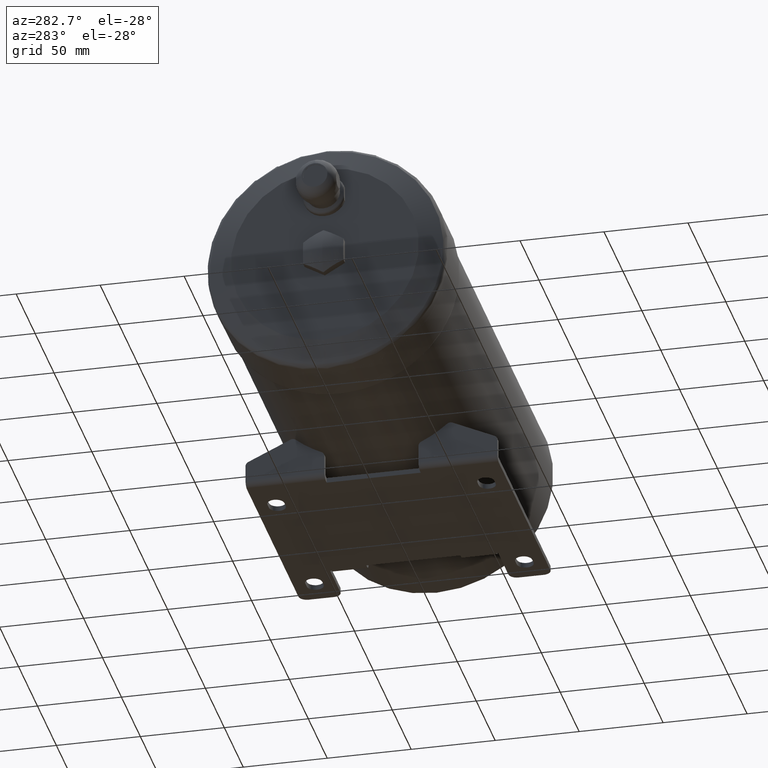
[diagram: clean part render]
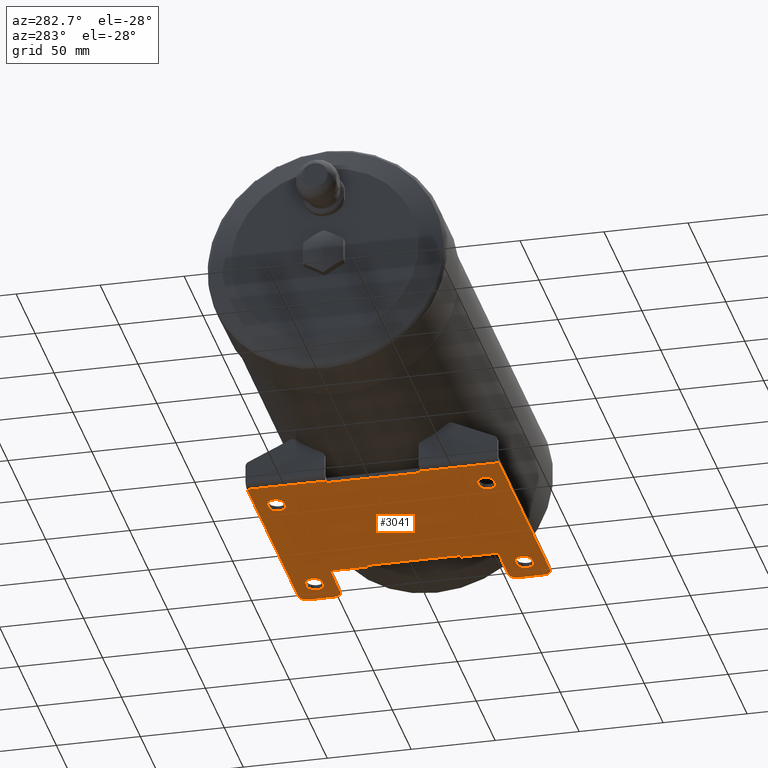
[diagram: same view with one face highlighted and labeled with its STEP entity id]
A machine part, auxiliary view. The second image highlights one B-rep face of the part: STEP entity #3041.
In plain terms, the highlighted planar face has unit normal (-0, 0, 1).
Its self-contained STEP definition (entity closure, byte-faithful):
#67=PLANE('',#3290);
#165=LINE('',#4595,#327);
#166=LINE('',#4599,#328);
#167=LINE('',#4603,#329);
#168=LINE('',#4607,#330);
#169=LINE('',#4608,#331);
#170=LINE('',#4613,#332);
#171=LINE('',#4616,#333);
#172=LINE('',#4621,#334);
#173=LINE('',#4624,#335);
#174=LINE('',#4629,#336);
#175=LINE('',#4633,#337);
#176=LINE('',#4635,#338);
#177=LINE('',#4637,#339);
#178=LINE('',#4639,#340);
#179=LINE('',#4641,#341);
#180=LINE('',#4643,#342);
#181=LINE('',#4645,#343);
#182=LINE('',#4647,#344);
#183=LINE('',#4649,#345);
#184=LINE('',#4653,#346);
#185=LINE('',#4657,#347);
#186=LINE('',#4659,#348);
#187=LINE('',#4661,#349);
#188=LINE('',#4663,#350);
#189=LINE('',#4665,#351);
#190=LINE('',#4667,#352);
#327=VECTOR('',#3801,1000.);
#328=VECTOR('',#3804,1000.);
#329=VECTOR('',#3807,1000.);
#330=VECTOR('',#3810,1000.);
#331=VECTOR('',#3811,1000.);
#332=VECTOR('',#3814,1000.);
#333=VECTOR('',#3817,1000.);
#334=VECTOR('',#3820,1000.);
#335=VECTOR('',#3823,1000.);
#336=VECTOR('',#3826,1000.);
#337=VECTOR('',#3829,1000.);
#338=VECTOR('',#3830,1000.);
#339=VECTOR('',#3831,1000.);
#340=VECTOR('',#3832,1000.);
#341=VECTOR('',#3833,1000.);
#342=VECTOR('',#3834,1000.);
#343=VECTOR('',#3835,1000.);
#344=VECTOR('',#3836,1000.);
#345=VECTOR('',#3837,1000.);
#346=VECTOR('',#3840,1000.);
#347=VECTOR('',#3843,1000.);
#348=VECTOR('',#3844,1000.);
#349=VECTOR('',#3845,1000.);
#350=VECTOR('',#3846,1000.);
#351=VECTOR('',#3847,1000.);
#352=VECTOR('',#3848,1000.);
#695=ORIENTED_EDGE('',*,*,#1213,.T.);
#696=ORIENTED_EDGE('',*,*,#1214,.T.);
#697=ORIENTED_EDGE('',*,*,#1215,.T.);
#698=ORIENTED_EDGE('',*,*,#1216,.T.);
#699=ORIENTED_EDGE('',*,*,#1217,.T.);
#700=ORIENTED_EDGE('',*,*,#1218,.T.);
#701=ORIENTED_EDGE('',*,*,#1219,.T.);
#702=ORIENTED_EDGE('',*,*,#1220,.T.);
#703=ORIENTED_EDGE('',*,*,#1221,.T.);
#704=ORIENTED_EDGE('',*,*,#1222,.T.);
#705=ORIENTED_EDGE('',*,*,#1223,.T.);
#706=ORIENTED_EDGE('',*,*,#1224,.T.);
#707=ORIENTED_EDGE('',*,*,#1225,.T.);
#708=ORIENTED_EDGE('',*,*,#1226,.T.);
#709=ORIENTED_EDGE('',*,*,#1227,.T.);
#710=ORIENTED_EDGE('',*,*,#1228,.T.);
#711=ORIENTED_EDGE('',*,*,#1229,.F.);
#712=ORIENTED_EDGE('',*,*,#1230,.T.);
#713=ORIENTED_EDGE('',*,*,#1231,.T.);
#714=ORIENTED_EDGE('',*,*,#1232,.T.);
#715=ORIENTED_EDGE('',*,*,#1233,.F.);
#716=ORIENTED_EDGE('',*,*,#1234,.F.);
#717=ORIENTED_EDGE('',*,*,#1235,.T.);
#718=ORIENTED_EDGE('',*,*,#1236,.T.);
#719=ORIENTED_EDGE('',*,*,#1237,.T.);
#720=ORIENTED_EDGE('',*,*,#1238,.T.);
#721=ORIENTED_EDGE('',*,*,#1239,.T.);
#722=ORIENTED_EDGE('',*,*,#1240,.F.);
#723=ORIENTED_EDGE('',*,*,#1241,.T.);
#724=ORIENTED_EDGE('',*,*,#1242,.T.);
#725=ORIENTED_EDGE('',*,*,#1243,.T.);
#726=ORIENTED_EDGE('',*,*,#1244,.T.);
#727=ORIENTED_EDGE('',*,*,#1245,.F.);
#728=ORIENTED_EDGE('',*,*,#1246,.T.);
#729=ORIENTED_EDGE('',*,*,#1247,.T.);
#730=ORIENTED_EDGE('',*,*,#1248,.T.);
#731=ORIENTED_EDGE('',*,*,#1249,.T.);
#732=ORIENTED_EDGE('',*,*,#1250,.F.);
#1213=EDGE_CURVE('',#1518,#1519,#1730,.T.);
#1214=EDGE_CURVE('',#1519,#1520,#165,.T.);
#1215=EDGE_CURVE('',#1520,#1521,#1731,.T.);
#1216=EDGE_CURVE('',#1521,#1518,#166,.T.);
#1217=EDGE_CURVE('',#1522,#1523,#1732,.T.);
#1218=EDGE_CURVE('',#1523,#1524,#167,.T.);
#1219=EDGE_CURVE('',#1524,#1525,#1733,.T.);
#1220=EDGE_CURVE('',#1525,#1522,#168,.T.);
#1221=EDGE_CURVE('',#1526,#1527,#169,.T.);
#1222=EDGE_CURVE('',#1527,#1528,#1734,.T.);
#1223=EDGE_CURVE('',#1528,#1529,#170,.T.);
#1224=EDGE_CURVE('',#1529,#1526,#1735,.T.);
#1225=EDGE_CURVE('',#1530,#1531,#171,.T.);
#1226=EDGE_CURVE('',#1531,#1532,#1736,.T.);
#1227=EDGE_CURVE('',#1532,#1533,#172,.T.);
#1228=EDGE_CURVE('',#1533,#1530,#1737,.T.);
#1229=EDGE_CURVE('',#1534,#1535,#173,.T.);
#1230=EDGE_CURVE('',#1534,#1536,#1738,.F.);
#1231=EDGE_CURVE('',#1536,#1537,#174,.T.);
#1232=EDGE_CURVE('',#1537,#1538,#1739,.F.);
#1233=EDGE_CURVE('',#1539,#1538,#175,.T.);
#1234=EDGE_CURVE('',#1540,#1539,#176,.T.);
#1235=EDGE_CURVE('',#1540,#1541,#177,.T.);
#1236=EDGE_CURVE('',#1541,#1542,#178,.T.);
#1237=EDGE_CURVE('',#1542,#1543,#179,.T.);
#1238=EDGE_CURVE('',#1543,#1544,#180,.T.);
#1239=EDGE_CURVE('',#1544,#1545,#181,.T.);
#1240=EDGE_CURVE('',#1546,#1545,#182,.T.);
#1241=EDGE_CURVE('',#1546,#1547,#183,.T.);
#1242=EDGE_CURVE('',#1547,#1548,#1740,.F.);
#1243=EDGE_CURVE('',#1548,#1549,#184,.T.);
#1244=EDGE_CURVE('',#1549,#1550,#1741,.F.);
#1245=EDGE_CURVE('',#1551,#1550,#185,.T.);
#1246=EDGE_CURVE('',#1551,#1552,#186,.T.);
#1247=EDGE_CURVE('',#1552,#1553,#187,.T.);
#1248=EDGE_CURVE('',#1553,#1554,#188,.T.);
#1249=EDGE_CURVE('',#1554,#1555,#189,.T.);
#1250=EDGE_CURVE('',#1535,#1555,#190,.T.);
#1518=VERTEX_POINT('',#4593);
#1519=VERTEX_POINT('',#4594);
#1520=VERTEX_POINT('',#4596);
#1521=VERTEX_POINT('',#4598);
#1522=VERTEX_POINT('',#4601);
#1523=VERTEX_POINT('',#4602);
#1524=VERTEX_POINT('',#4604);
#1525=VERTEX_POINT('',#4606);
#1526=VERTEX_POINT('',#4609);
#1527=VERTEX_POINT('',#4610);
#1528=VERTEX_POINT('',#4612);
#1529=VERTEX_POINT('',#4614);
#1530=VERTEX_POINT('',#4617);
#1531=VERTEX_POINT('',#4618);
#1532=VERTEX_POINT('',#4620);
#1533=VERTEX_POINT('',#4622);
#1534=VERTEX_POINT('',#4625);
#1535=VERTEX_POINT('',#4626);
#1536=VERTEX_POINT('',#4628);
#1537=VERTEX_POINT('',#4630);
#1538=VERTEX_POINT('',#4632);
#1539=VERTEX_POINT('',#4634);
#1540=VERTEX_POINT('',#4636);
#1541=VERTEX_POINT('',#4638);
#1542=VERTEX_POINT('',#4640);
#1543=VERTEX_POINT('',#4642);
#1544=VERTEX_POINT('',#4644);
#1545=VERTEX_POINT('',#4646);
#1546=VERTEX_POINT('',#4648);
#1547=VERTEX_POINT('',#4650);
#1548=VERTEX_POINT('',#4652);
#1549=VERTEX_POINT('',#4654);
#1550=VERTEX_POINT('',#4656);
#1551=VERTEX_POINT('',#4658);
#1552=VERTEX_POINT('',#4660);
#1553=VERTEX_POINT('',#4662);
#1554=VERTEX_POINT('',#4664);
#1555=VERTEX_POINT('',#4666);
#1730=CIRCLE('',#3291,5.);
#1731=CIRCLE('',#3292,5.);
#1732=CIRCLE('',#3293,5.);
#1733=CIRCLE('',#3294,5.);
#1734=CIRCLE('',#3295,5.);
#1735=CIRCLE('',#3296,5.);
#1736=CIRCLE('',#3297,5.);
#1737=CIRCLE('',#3298,5.);
#1738=CIRCLE('',#3299,5.);
#1739=CIRCLE('',#3300,5.);
#1740=CIRCLE('',#3301,5.);
#1741=CIRCLE('',#3302,5.);
#1952=EDGE_LOOP('',(#695,#696,#697,#698));
#1953=EDGE_LOOP('',(#699,#700,#701,#702));
#1954=EDGE_LOOP('',(#703,#704,#705,#706));
#1955=EDGE_LOOP('',(#707,#708,#709,#710));
#1956=EDGE_LOOP('',(#711,#712,#713,#714,#715,#716,#717,#718,#719,#720,#721,
#722,#723,#724,#725,#726,#727,#728,#729,#730,#731,#732));
#2189=FACE_BOUND('',#1952,.T.);
#2190=FACE_BOUND('',#1953,.T.);
#2191=FACE_BOUND('',#1954,.T.);
#2192=FACE_BOUND('',#1955,.T.);
#2193=FACE_BOUND('',#1956,.T.);
#3041=ADVANCED_FACE('',(#2189,#2190,#2191,#2192,#2193),#67,.F.);
#3290=AXIS2_PLACEMENT_3D('',#4591,#3797,#3798);
#3291=AXIS2_PLACEMENT_3D('',#4592,#3799,#3800);
#3292=AXIS2_PLACEMENT_3D('',#4597,#3802,#3803);
#3293=AXIS2_PLACEMENT_3D('',#4600,#3805,#3806);
#3294=AXIS2_PLACEMENT_3D('',#4605,#3808,#3809);
#3295=AXIS2_PLACEMENT_3D('',#4611,#3812,#3813);
#3296=AXIS2_PLACEMENT_3D('',#4615,#3815,#3816);
#3297=AXIS2_PLACEMENT_3D('',#4619,#3818,#3819);
#3298=AXIS2_PLACEMENT_3D('',#4623,#3821,#3822);
#3299=AXIS2_PLACEMENT_3D('',#4627,#3824,#3825);
#3300=AXIS2_PLACEMENT_3D('',#4631,#3827,#3828);
#3301=AXIS2_PLACEMENT_3D('',#4651,#3838,#3839);
#3302=AXIS2_PLACEMENT_3D('',#4655,#3841,#3842);
#3797=DIRECTION('',(0.,0.,1.));
#3798=DIRECTION('',(1.,0.,0.));
#3799=DIRECTION('',(0.,0.,1.));
#3800=DIRECTION('',(1.,0.,0.));
#3801=DIRECTION('',(-1.,0.,0.));
#3802=DIRECTION('',(0.,0.,1.));
#3803=DIRECTION('',(1.,0.,0.));
#3804=DIRECTION('',(1.,-3.4694469519536E-15,0.));
#3805=DIRECTION('',(0.,0.,1.));
#3806=DIRECTION('',(1.,0.,0.));
#3807=DIRECTION('',(-1.,0.,0.));
#3808=DIRECTION('',(0.,0.,1.));
#3809=DIRECTION('',(1.,0.,0.));
#3810=DIRECTION('',(1.,0.,0.));
#3811=DIRECTION('',(-1.,-3.4694469519536E-15,0.));
#3812=DIRECTION('',(0.,0.,1.));
#3813=DIRECTION('',(1.,0.,0.));
#3814=DIRECTION('',(1.,0.,0.));
#3815=DIRECTION('',(0.,0.,1.));
#3816=DIRECTION('',(1.,0.,0.));
#3817=DIRECTION('',(-1.,0.,0.));
#3818=DIRECTION('',(0.,0.,1.));
#3819=DIRECTION('',(1.,0.,0.));
#3820=DIRECTION('',(1.,0.,0.));
#3821=DIRECTION('',(0.,0.,1.));
#3822=DIRECTION('',(1.,0.,0.));
#3823=DIRECTION('',(-1.,0.,0.));
#3824=DIRECTION('',(0.,0.,1.));
#3825=DIRECTION('',(1.,0.,0.));
#3826=DIRECTION('',(0.,-1.,0.));
#3827=DIRECTION('',(0.,0.,1.));
#3828=DIRECTION('',(1.,0.,0.));
#3829=DIRECTION('',(1.,0.,0.));
#3830=DIRECTION('',(0.,1.,0.));
#3831=DIRECTION('',(0.,-1.,0.));
#3832=DIRECTION('',(-1.,0.,0.));
#3833=DIRECTION('',(1.23908819712629E-16,-1.,0.));
#3834=DIRECTION('',(1.,0.,0.));
#3835=DIRECTION('',(0.,-1.,0.));
#3836=DIRECTION('',(0.,1.,0.));
#3837=DIRECTION('',(1.,0.,0.));
#3838=DIRECTION('',(0.,0.,1.));
#3839=DIRECTION('',(1.,0.,0.));
#3840=DIRECTION('',(0.,-1.,0.));
#3841=DIRECTION('',(0.,0.,1.));
#3842=DIRECTION('',(1.,0.,0.));
#3843=DIRECTION('',(1.,0.,0.));
#3844=DIRECTION('',(0.,1.,0.));
#3845=DIRECTION('',(1.,0.,0.));
#3846=DIRECTION('',(0.,1.,0.));
#3847=DIRECTION('',(-1.,0.,0.));
#3848=DIRECTION('',(0.,-1.,0.));
#4591=CARTESIAN_POINT('',(0.,0.,0.));
#4592=CARTESIAN_POINT('',(-48.,62.5,0.));
#4593=CARTESIAN_POINT('',(-48.,57.5,-5.55111512312578E-14));
#4594=CARTESIAN_POINT('',(-48.,67.5,0.));
#4595=CARTESIAN_POINT('',(0.,67.5,0.));
#4596=CARTESIAN_POINT('',(-52.,67.5,-5.55111512312578E-14));
#4597=CARTESIAN_POINT('',(-52.,62.5,0.));
#4598=CARTESIAN_POINT('',(-52.,57.5,-5.55111512312578E-14));
#4599=CARTESIAN_POINT('',(1.99493199737331E-13,57.4999999999998,0.));
#4600=CARTESIAN_POINT('',(52.,62.5,0.));
#4601=CARTESIAN_POINT('',(52.,57.5,-5.55111512312578E-14));
#4602=CARTESIAN_POINT('',(52.,67.5,0.));
#4603=CARTESIAN_POINT('',(0.,67.5,0.));
#4604=CARTESIAN_POINT('',(48.,67.5,-5.55111512312578E-14));
#4605=CARTESIAN_POINT('',(48.,62.5,0.));
#4606=CARTESIAN_POINT('',(48.,57.5,-5.55111512312578E-14));
#4607=CARTESIAN_POINT('',(0.,57.5,0.));
#4608=CARTESIAN_POINT('',(1.99493199737331E-13,-57.4999999999998,0.));
#4609=CARTESIAN_POINT('',(-48.,-57.5,-5.55111512312578E-14));
#4610=CARTESIAN_POINT('',(-52.,-57.5,0.));
#4611=CARTESIAN_POINT('',(-52.,-62.5,0.));
#4612=CARTESIAN_POINT('',(-52.,-67.5,-5.55111512312578E-14));
#4613=CARTESIAN_POINT('',(0.,-67.5,0.));
#4614=CARTESIAN_POINT('',(-48.,-67.5,-5.55111512312578E-14));
#4615=CARTESIAN_POINT('',(-48.,-62.5,0.));
#4616=CARTESIAN_POINT('',(0.,-57.5,0.));
#4617=CARTESIAN_POINT('',(52.,-57.5,-5.55111512312578E-14));
#4618=CARTESIAN_POINT('',(48.,-57.5,0.));
#4619=CARTESIAN_POINT('',(48.,-62.5,0.));
#4620=CARTESIAN_POINT('',(48.,-67.5,-5.55111512312578E-14));
#4621=CARTESIAN_POINT('',(0.,-67.5,0.));
#4622=CARTESIAN_POINT('',(52.,-67.5,-5.55111512312578E-14));
#4623=CARTESIAN_POINT('',(52.,-62.5,0.));
#4624=CARTESIAN_POINT('',(40.,75.,0.));
#4625=CARTESIAN_POINT('',(63.,75.,0.));
#4626=CARTESIAN_POINT('',(-73.,75.,0.));
#4627=CARTESIAN_POINT('',(63.,70.,0.));
#4628=CARTESIAN_POINT('',(68.,70.,-4.33680868994202E-16));
#4629=CARTESIAN_POINT('',(68.,75.,-4.33680868994202E-16));
#4630=CARTESIAN_POINT('',(68.,55.,-4.33680868994202E-16));
#4631=CARTESIAN_POINT('',(63.,55.,0.));
#4632=CARTESIAN_POINT('',(63.,50.,0.));
#4633=CARTESIAN_POINT('',(40.,50.,0.));
#4634=CARTESIAN_POINT('',(36.,50.,0.));
#4635=CARTESIAN_POINT('',(36.,50.,0.));
#4636=CARTESIAN_POINT('',(36.,49.,0.));
#4637=CARTESIAN_POINT('',(36.,49.,0.));
#4638=CARTESIAN_POINT('',(36.,28.,0.));
#4639=CARTESIAN_POINT('',(0.,28.,0.));
#4640=CARTESIAN_POINT('',(34.,28.,0.));
#4641=CARTESIAN_POINT('',(34.,4.21289987022939E-15,0.));
#4642=CARTESIAN_POINT('',(34.,-28.,0.));
#4643=CARTESIAN_POINT('',(0.,-28.,0.));
#4644=CARTESIAN_POINT('',(36.,-28.,0.));
#4645=CARTESIAN_POINT('',(36.,-28.,0.));
#4646=CARTESIAN_POINT('',(36.,-49.,0.));
#4647=CARTESIAN_POINT('',(36.,-27.,0.));
#4648=CARTESIAN_POINT('',(36.,-50.,0.));
#4649=CARTESIAN_POINT('',(40.,-50.,0.));
#4650=CARTESIAN_POINT('',(63.,-50.,0.));
#4651=CARTESIAN_POINT('',(63.,-55.,0.));
#4652=CARTESIAN_POINT('',(68.,-55.,-4.33680868994202E-16));
#4653=CARTESIAN_POINT('',(68.,-50.,-4.33680868994202E-16));
#4654=CARTESIAN_POINT('',(68.,-70.,-4.33680868994202E-16));
#4655=CARTESIAN_POINT('',(63.,-70.,0.));
#4656=CARTESIAN_POINT('',(63.,-75.,0.));
#4657=CARTESIAN_POINT('',(-77.,-75.,0.));
#4658=CARTESIAN_POINT('',(-73.,-75.,0.));
#4659=CARTESIAN_POINT('',(-73.,-27.,0.));
#4660=CARTESIAN_POINT('',(-73.,-28.,0.));
#4661=CARTESIAN_POINT('',(0.,-28.,0.));
#4662=CARTESIAN_POINT('',(-71.,-28.,0.));
#4663=CARTESIAN_POINT('',(-71.,0.,0.));
#4664=CARTESIAN_POINT('',(-71.,28.,0.));
#4665=CARTESIAN_POINT('',(0.,28.,0.));
#4666=CARTESIAN_POINT('',(-73.,28.,0.));
#4667=CARTESIAN_POINT('',(-73.,27.,0.));